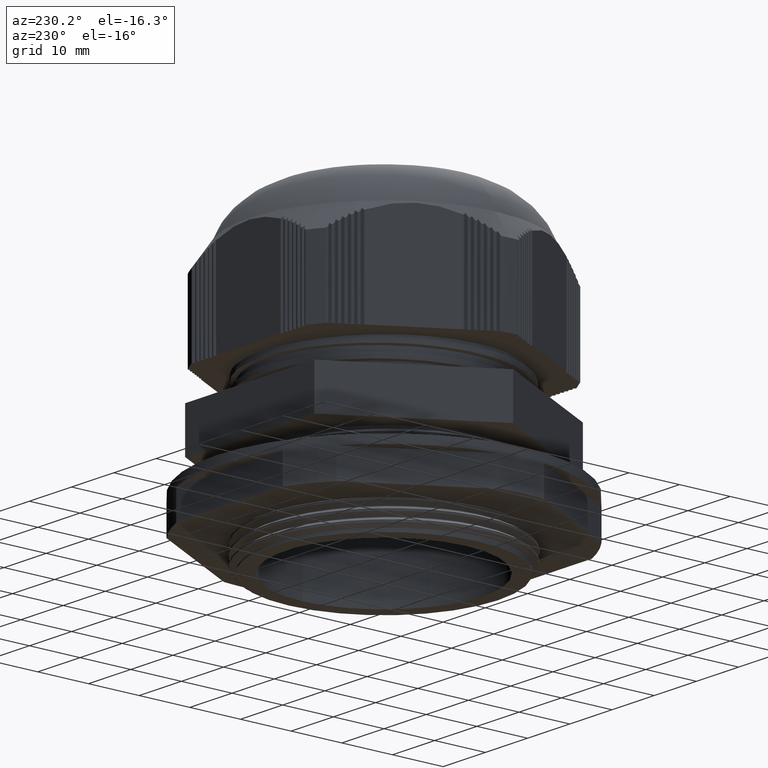
[diagram: clean part render]
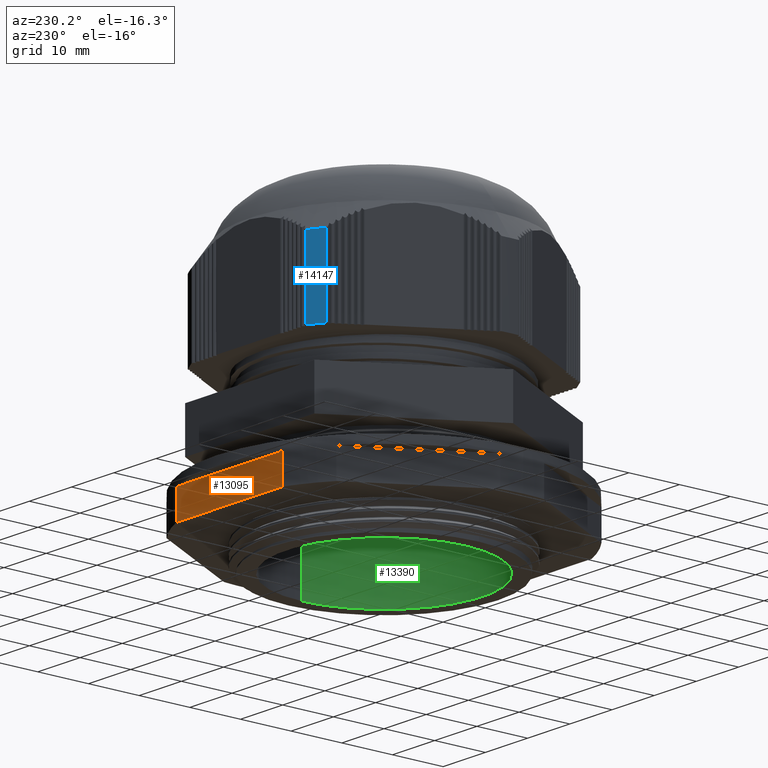
[diagram: same view with three faces highlighted in distinct colors, each labeled with its STEP entity id]
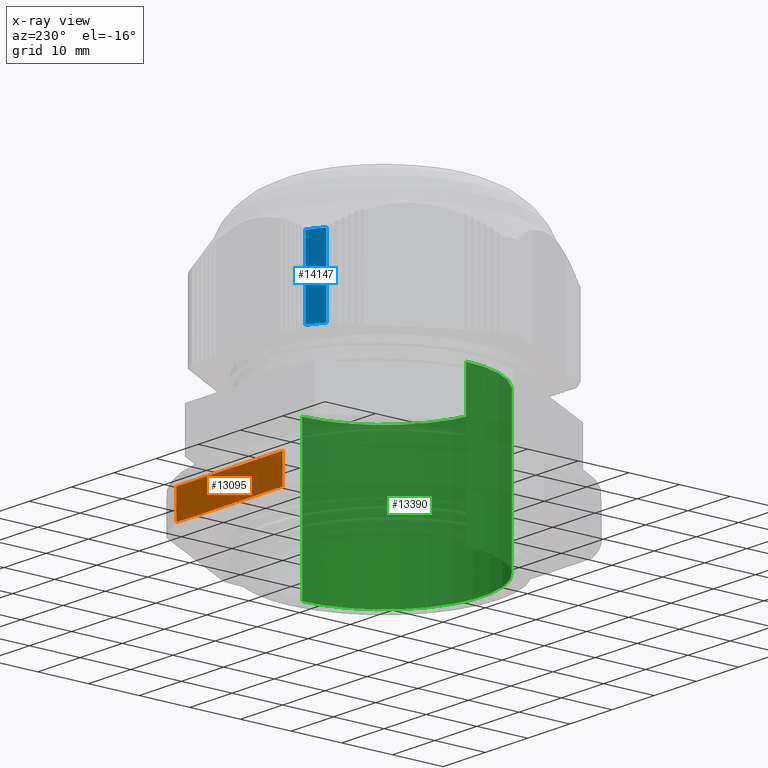
[diagram: x-ray of the same camera — body ghosted, the three highlighted faces saturated]
A machine part, auxiliary view with three faces highlighted in distinct colors.
The next image is the same camera in x-ray (body ghosted, the three faces saturated) — at least one of them is partly hidden behind the body in this view.
Their STEP definitions:

[orange] entity #13095 — the highlighted planar face has unit normal (0, -1, 0).
#866 = LINE ( 'NONE', #907, #9371 ) ;
#904 = DIRECTION ( 'NONE',  ( -0.0000000000000000000, -0.0000000000000000000, -1.000000000000000000 ) ) ;
#907 = CARTESIAN_POINT ( 'NONE',  ( -12.59960316835413800, 30.50000000000001100, -16.68033489908907900 ) ) ;
#2473 = CARTESIAN_POINT ( 'NONE',  ( 12.59960316835412700, 30.50000000000001100, -16.68033489908907900 ) ) ;
#2488 = LINE ( 'NONE', #2473, #9265 ) ;
#2501 = DIRECTION ( 'NONE',  ( 0.0000000000000000000, 0.0000000000000000000, 1.000000000000000000 ) ) ;
#3719 = VERTEX_POINT ( 'NONE', #16622 ) ;
#3760 = VERTEX_POINT ( 'NONE', #16690 ) ;
#3763 = VERTEX_POINT ( 'NONE', #16681 ) ;
#3764 = VERTEX_POINT ( 'NONE', #16691 ) ;
#6715 = FACE_OUTER_BOUND ( 'NONE', #20057, .T. ) ;
#6733 = DIRECTION ( 'NONE',  ( 0.0000000000000000000, -1.000000000000000000, 0.0000000000000000000 ) ) ;
#6736 = DIRECTION ( 'NONE',  ( 0.0000000000000000000, -0.0000000000000000000, -1.000000000000000000 ) ) ;
#6742 = CARTESIAN_POINT ( 'NONE',  ( 17.32050807568875700, 30.50000000000001100, 12.51966510091093100 ) ) ;
#6753 = PLANE ( 'NONE',  #8935 ) ;
#8935 = AXIS2_PLACEMENT_3D ( 'NONE', #6742, #6733, #6736 ) ;
#9265 = VECTOR ( 'NONE', #2501, 1000.000000000000000 ) ;
#9371 = VECTOR ( 'NONE', #904, 1000.000000000000000 ) ;
#13095 = ADVANCED_FACE ( 'NONE', ( #6715 ), #6753, .F. ) ;
#13374 = EDGE_CURVE ( 'NONE', #3763, #3719, #2488, .T. ) ;
#13443 = EDGE_CURVE ( 'NONE', #3764, #3760, #866, .T. ) ;
#13939 = EDGE_CURVE ( 'NONE', #3719, #3764, #22015, .T. ) ;
#13961 = EDGE_CURVE ( 'NONE', #3763, #3760, #22244, .T. ) ;
#16622 = CARTESIAN_POINT ( 'NONE',  ( 12.59960316835412700, 30.50000000000001100, 10.86966510091093200 ) ) ;
#16681 = CARTESIAN_POINT ( 'NONE',  ( 12.59960316835412700, 30.50000000000001100, 5.219665100910933800 ) ) ;
#16690 = CARTESIAN_POINT ( 'NONE',  ( -12.59960316835413800, 30.50000000000001100, 5.219665100910933800 ) ) ;
#16691 = CARTESIAN_POINT ( 'NONE',  ( -12.59960316835413800, 30.50000000000001100, 10.86966510091093200 ) ) ;
#20005 = ORIENTED_EDGE ( 'NONE', *, *, #13443, .F. ) ;
#20025 = ORIENTED_EDGE ( 'NONE', *, *, #13961, .T. ) ;
#20038 = ORIENTED_EDGE ( 'NONE', *, *, #13939, .F. ) ;
#20043 = ORIENTED_EDGE ( 'NONE', *, *, #13374, .F. ) ;
#20057 = EDGE_LOOP ( 'NONE', ( #20025, #20005, #20038, #20043 ) ) ;
#22015 = LINE ( 'NONE', #22073, #24455 ) ;
#22073 = CARTESIAN_POINT ( 'NONE',  ( 17.32050807568875700, 30.50000000000001100, 10.86966510091093200 ) ) ;
#22086 = DIRECTION ( 'NONE',  ( -1.000000000000000000, -0.0000000000000000000, -0.0000000000000000000 ) ) ;
#22236 = CARTESIAN_POINT ( 'NONE',  ( 17.32050807568875700, 30.50000000000001100, 5.219665100910932900 ) ) ;
#22244 = LINE ( 'NONE', #22236, #23752 ) ;
#22258 = DIRECTION ( 'NONE',  ( -1.000000000000000000, 0.0000000000000000000, 0.0000000000000000000 ) ) ;
#23752 = VECTOR ( 'NONE', #22258, 1000.000000000000000 ) ;
#24455 = VECTOR ( 'NONE', #22086, 1000.000000000000000 ) ;

[blue] entity #14147 — the highlighted cylindrical surface (partial cylindrical patch) has radius 29.9601 mm, axis along (0, 0, -1).
#2295 = VERTEX_POINT ( 'NONE', #19832 ) ;
#2300 = VERTEX_POINT ( 'NONE', #19851 ) ;
#4230 = EDGE_LOOP ( 'NONE', ( #14573, #14545, #14565, #14595 ) ) ;
#4609 = CYLINDRICAL_SURFACE ( 'NONE', #23795, 29.96008184178257500 ) ;
#4627 = DIRECTION ( 'NONE',  ( -1.000000000000000000, 0.0000000000000000000, 0.0000000000000000000 ) ) ;
#4633 = CARTESIAN_POINT ( 'NONE',  ( 6.938893903907228400E-015, 0.0000000000000000000, 51.26502349691482200 ) ) ;
#4637 = DIRECTION ( 'NONE',  ( 0.0000000000000000000, 0.0000000000000000000, -1.000000000000000000 ) ) ;
#4647 = FACE_OUTER_BOUND ( 'NONE', #4230, .T. ) ;
#5854 = EDGE_CURVE ( 'NONE', #7581, #7491, #8735, .T. ) ;
#7491 = VERTEX_POINT ( 'NONE', #12083 ) ;
#7581 = VERTEX_POINT ( 'NONE', #12196 ) ;
#7753 = B_SPLINE_CURVE_WITH_KNOTS ( 'NONE', 3,
 ( #15780, #15761, #15752, #15782 ),
 .UNSPECIFIED., .F., .F.,
 ( 4, 4 ),
 ( 0.0000000000000000000, 1.000000000000000000 ),
 .UNSPECIFIED. ) ;
#8735 = CIRCLE ( 'NONE', #8737, 29.96008184178257500 ) ;
#8737 = AXIS2_PLACEMENT_3D ( 'NONE', #11433, #11440, #11457 ) ;
#11433 = CARTESIAN_POINT ( 'NONE',  ( 0.0000000000000000000, 0.0000000000000000000, 46.30679015969903400 ) ) ;
#11440 = DIRECTION ( 'NONE',  ( -0.0000000000000000000, -0.0000000000000000000, 1.000000000000000000 ) ) ;
#11457 = DIRECTION ( 'NONE',  ( -1.000000000000000000, -4.440892098500626200E-015, 0.0000000000000000000 ) ) ;
#12083 = CARTESIAN_POINT ( 'NONE',  ( -16.41615102843731900, 25.06225228062723800, 46.30679015969871400 ) ) ;
#12196 = CARTESIAN_POINT ( 'NONE',  ( -13.49647163686246100, 26.74792996330131700, 46.30679015969883500 ) ) ;
#13788 = EDGE_CURVE ( 'NONE', #7581, #2300, #15577, .T. ) ;
#13819 = EDGE_CURVE ( 'NONE', #2300, #2295, #7753, .T. ) ;
#13831 = EDGE_CURVE ( 'NONE', #2295, #7491, #21137, .T. ) ;
#14147 = ADVANCED_FACE ( 'NONE', ( #4647 ), #4609, .T. ) ;
#14545 = ORIENTED_EDGE ( 'NONE', *, *, #13819, .T. ) ;
#14565 = ORIENTED_EDGE ( 'NONE', *, *, #13831, .T. ) ;
#14573 = ORIENTED_EDGE ( 'NONE', *, *, #13788, .T. ) ;
#14595 = ORIENTED_EDGE ( 'NONE', *, *, #5854, .F. ) ;
#15550 = CARTESIAN_POINT ( 'NONE',  ( -13.49647163686245400, 26.74792996330140200, 51.26502349691482200 ) ) ;
#15576 = DIRECTION ( 'NONE',  ( 0.0000000000000000000, 0.0000000000000000000, -1.000000000000000000 ) ) ;
#15577 = LINE ( 'NONE', #15550, #24311 ) ;
#15752 = CARTESIAN_POINT ( 'NONE',  ( -15.47558392767008300, 25.67833783453915300, 31.26502349691465100 ) ) ;
#15761 = CARTESIAN_POINT ( 'NONE',  ( -14.50030092783454100, 26.24141773703025400, 31.26502349691465100 ) ) ;
#15780 = CARTESIAN_POINT ( 'NONE',  ( -13.49647163686281300, 26.74792996330122100, 31.26502349691465100 ) ) ;
#15782 = CARTESIAN_POINT ( 'NONE',  ( -16.41615102843512400, 25.06225228062890800, 31.26502349691465100 ) ) ;
#19832 = CARTESIAN_POINT ( 'NONE',  ( -16.41615102843512400, 25.06225228062890800, 31.26502349691465100 ) ) ;
#19851 = CARTESIAN_POINT ( 'NONE',  ( -13.49647163686281300, 26.74792996330122100, 31.26502349691465100 ) ) ;
#21137 = LINE ( 'NONE', #21139, #24383 ) ;
#21139 = CARTESIAN_POINT ( 'NONE',  ( -16.41615102843436000, 25.06225228062999100, 51.26502349691482200 ) ) ;
#21141 = DIRECTION ( 'NONE',  ( -0.0000000000000000000, -0.0000000000000000000, 1.000000000000000000 ) ) ;
#23795 = AXIS2_PLACEMENT_3D ( 'NONE', #4633, #4637, #4627 ) ;
#24311 = VECTOR ( 'NONE', #15576, 1000.000000000000000 ) ;
#24383 = VECTOR ( 'NONE', #21141, 1000.000000000000000 ) ;

[green] entity #13390 — the highlighted cylindrical surface (partial cylindrical patch) has radius 19.4 mm, axis along (-0, -0, -1).
#345 = ORIENTED_EDGE ( 'NONE', *, *, #13345, .F. ) ;
#371 = ORIENTED_EDGE ( 'NONE', *, *, #13372, .F. ) ;
#537 = DIRECTION ( 'NONE',  ( -1.000000000000000000, 0.0000000000000000000, 0.0000000000000000000 ) ) ;
#541 = DIRECTION ( 'NONE',  ( -0.0000000000000000000, -0.0000000000000000000, -1.000000000000000000 ) ) ;
#562 = CARTESIAN_POINT ( 'NONE',  ( 0.0000000000000000000, 0.0000000000000000000, 55.50000000000000000 ) ) ;
#574 = CYLINDRICAL_SURFACE ( 'NONE', #9300, 19.40000000000000900 ) ;
#580 = FACE_OUTER_BOUND ( 'NONE', #22159, .T. ) ;
#702 = DIRECTION ( 'NONE',  ( -1.000000000000000000, 0.0000000000000000000, 0.0000000000000000000 ) ) ;
#723 = CARTESIAN_POINT ( 'NONE',  ( 0.0000000000000000000, 0.0000000000000000000, 29.14214185335528400 ) ) ;
#733 = DIRECTION ( 'NONE',  ( -0.0000000000000000000, -0.0000000000000000000, -1.000000000000000000 ) ) ;
#997 = ORIENTED_EDGE ( 'NONE', *, *, #13344, .T. ) ;
#1163 = ORIENTED_EDGE ( 'NONE', *, *, #13420, .F. ) ;
#3324 = LINE ( 'NONE', #3355, #9313 ) ;
#3326 = DIRECTION ( 'NONE',  ( -0.0000000000000000000, -0.0000000000000000000, -1.000000000000000000 ) ) ;
#3329 = CARTESIAN_POINT ( 'NONE',  ( 0.0000000000000000000, 0.0000000000000000000, 0.0000000000000000000 ) ) ;
#3331 = DIRECTION ( 'NONE',  ( 0.0000000000000000000, 0.0000000000000000000, 1.000000000000000000 ) ) ;
#3333 = DIRECTION ( 'NONE',  ( -1.000000000000000000, 0.0000000000000000000, 0.0000000000000000000 ) ) ;
#3355 = CARTESIAN_POINT ( 'NONE',  ( 19.40000000000000900, 2.375814790345866000E-015, 55.50000000000000000 ) ) ;
#3441 = LINE ( 'NONE', #3467, #9263 ) ;
#3467 = CARTESIAN_POINT ( 'NONE',  ( -19.40000000000000900, 0.0000000000000000000, 55.50000000000000000 ) ) ;
#3469 = DIRECTION ( 'NONE',  ( -0.0000000000000000000, -0.0000000000000000000, -1.000000000000000000 ) ) ;
#3660 = VERTEX_POINT ( 'NONE', #16633 ) ;
#3661 = VERTEX_POINT ( 'NONE', #16592 ) ;
#3700 = VERTEX_POINT ( 'NONE', #16618 ) ;
#3710 = VERTEX_POINT ( 'NONE', #16595 ) ;
#9263 = VECTOR ( 'NONE', #3469, 1000.000000000000000 ) ;
#9279 = AXIS2_PLACEMENT_3D ( 'NONE', #3329, #3331, #3333 ) ;
#9282 = CIRCLE ( 'NONE', #9279, 19.40000000000000900 ) ;
#9300 = AXIS2_PLACEMENT_3D ( 'NONE', #562, #541, #537 ) ;
#9313 = VECTOR ( 'NONE', #3326, 1000.000000000000000 ) ;
#9323 = CIRCLE ( 'NONE', #9337, 19.40000000000000900 ) ;
#9337 = AXIS2_PLACEMENT_3D ( 'NONE', #723, #733, #702 ) ;
#13344 = EDGE_CURVE ( 'NONE', #3710, #3700, #3324, .T. ) ;
#13345 = EDGE_CURVE ( 'NONE', #3661, #3700, #9282, .T. ) ;
#13372 = EDGE_CURVE ( 'NONE', #3660, #3661, #3441, .T. ) ;
#13390 = ADVANCED_FACE ( 'NONE', ( #580 ), #574, .F. ) ;
#13420 = EDGE_CURVE ( 'NONE', #3710, #3660, #9323, .T. ) ;
#16592 = CARTESIAN_POINT ( 'NONE',  ( -19.40000000000000900, 0.0000000000000000000, 0.0000000000000000000 ) ) ;
#16595 = CARTESIAN_POINT ( 'NONE',  ( 19.40000000000000900, 2.375814790345866000E-015, 29.14214185335528400 ) ) ;
#16618 = CARTESIAN_POINT ( 'NONE',  ( 19.40000000000000900, 2.375814790345866000E-015, 0.0000000000000000000 ) ) ;
#16633 = CARTESIAN_POINT ( 'NONE',  ( -19.40000000000000900, 0.0000000000000000000, 29.14214185335528400 ) ) ;
#22159 = EDGE_LOOP ( 'NONE', ( #1163, #997, #345, #371 ) ) ;